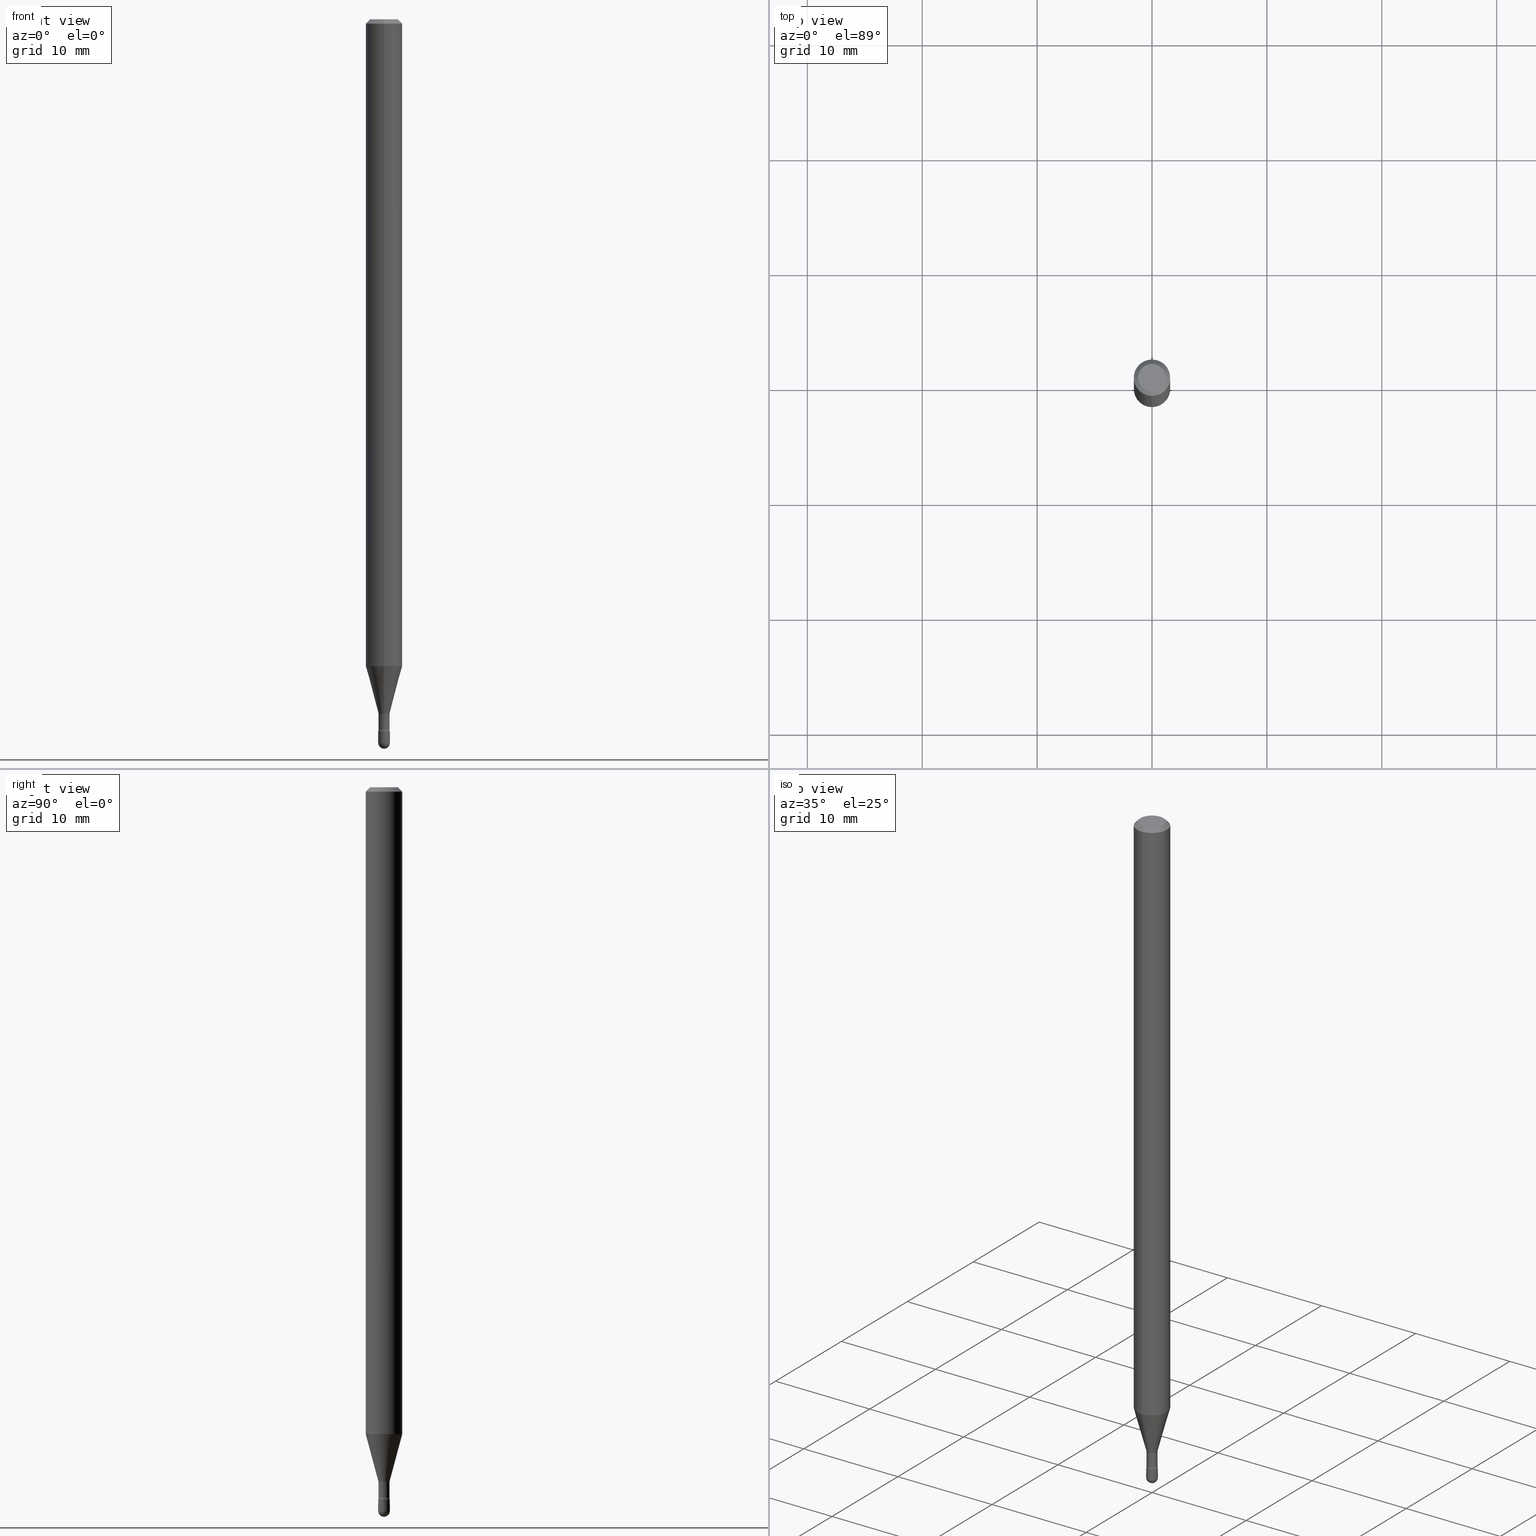
[diagram: canonical four-view strip — front | top / right | iso, engineering-drawing reading convention]
A machine part, canonical four-view strip (front | top / right | iso — engineering-drawing reading convention). The complete STEP part file that produces these views, byte-faithful:
ISO-10303-21;
HEADER;
FILE_DESCRIPTION (( 'STEP AP203' ),
    '1' );
FILE_NAME ('09459.STEP',
    '2024-04-09T23:24:41',
    ( '' ),
    ( '' ),
    'SwSTEP 2.0',
    'SolidWorks 2023',
    '' );
FILE_SCHEMA (( 'CONFIG_CONTROL_DESIGN' ));
ENDSEC;

DATA;
#1 = PERSON_AND_ORGANIZATION ( #21, #259 ) ;
#2 = LINE ( 'NONE', #537, #514 ) ;
#3 = ADVANCED_FACE ( 'NONE', ( #390 ), #66, .F. ) ;
#4 = DATE_TIME_ROLE ( 'creation_date' ) ;
#5 = DIRECTION ( 'NONE',  ( -2.445421573966572073E-29, 3.491548978068420720E-15, 1.000000000000000000 ) ) ;
#6 = CIRCLE ( 'NONE', #224, 0.01499999999999996822 ) ;
#7 = CIRCLE ( 'NONE', #226, 0.01500000000000002720 ) ;
#8 = CC_DESIGN_APPROVAL ( #472, ( #35 ) ) ;
#9 = EDGE_CURVE ( 'NONE', #539, #40, #324, .T. ) ;
#10 = APPROVAL_DATE_TIME ( #447, #472 ) ;
#11 = CARTESIAN_POINT ( 'NONE',  ( 5.966943887091733341E-29, -8.519214466777275048E-15, -2.440000000000000391 ) ) ;
#12 = CYLINDRICAL_SURFACE ( 'NONE', #118, 0.01880000000000003890 ) ;
#13 = EDGE_CURVE ( 'NONE', #121, #373, #145, .T. ) ;
#14 = CC_DESIGN_PERSON_AND_ORGANIZATION_ASSIGNMENT ( #1, #413, ( #35 ) ) ;
#15 = DIRECTION ( 'NONE',  ( -2.445468806185136597E-29, 3.491481338843145583E-15, 1.000000000000000000 ) ) ;
#16 = EDGE_CURVE ( 'NONE', #71, #459, #150, .T. ) ;
#17 = TOROIDAL_SURFACE ( 'NONE', #439, 0.03380000000000004529, 0.01499999999999997169 ) ;
#18 = CIRCLE ( 'NONE', #339, 0.01931111260566397564 ) ;
#19 = AXIS2_PLACEMENT_3D ( 'NONE', #499, #540, #543 ) ;
#20 = ORIENTED_EDGE ( 'NONE', *, *, #161, .T. ) ;
#21 = PERSON ( 'UNSPECIFIED', 'UNSPECIFIED', 'UNSPECIFIED', ('UNSPECIFIED'), ('UNSPECIFIED'), ('UNSPECIFIED') ) ;
#22 = ORIENTED_EDGE ( 'NONE', *, *, #461, .T. ) ;
#23 = DIRECTION ( 'NONE',  ( -2.445468806185136597E-29, 3.491481338843145583E-15, 1.000000000000000000 ) ) ;
#24 = ADVANCED_FACE ( 'NONE', ( #489 ), #476, .T. ) ;
#25 = DIRECTION ( 'NONE',  ( -6.982962677686265922E-15, -1.000000000000000000, 4.370956789862821150E-15 ) ) ;
#26 = AXIS2_PLACEMENT_3D ( 'NONE', #479, #188, #352 ) ;
#27 = ORIENTED_EDGE ( 'NONE', *, *, #516, .T. ) ;
#28 = DIRECTION ( 'NONE',  ( -1.000000000000000000, 6.982962677686265922E-15, -4.883557194083112340E-29 ) ) ;
#29 = ORIENTED_EDGE ( 'NONE', *, *, #461, .F. ) ;
#30 = SPHERICAL_SURFACE ( 'NONE', #158, 0.01999999999999989286 ) ;
#31 = FACE_OUTER_BOUND ( 'NONE', #37, .T. ) ;
#32 = EDGE_CURVE ( 'NONE', #147, #547, #451, .T. ) ;
#33 = CIRCLE ( 'NONE', #244, 0.04749999999999999362 ) ;
#34 = AXIS2_PLACEMENT_3D ( 'NONE', #464, #76, #494 ) ;
#35 = SECURITY_CLASSIFICATION ( '', '', #319 ) ;
#36 = DIRECTION ( 'NONE',  ( 7.105427357601003436E-15, 1.000000000000000000, 0.000000000000000000 ) ) ;
#37 = EDGE_LOOP ( 'NONE', ( #275, #225 ) ) ;
#38 = DIRECTION ( 'NONE',  ( -6.982962677686265922E-15, -1.000000000000000000, 4.370956789862821150E-15 ) ) ;
#39 =( NAMED_UNIT ( * ) SI_UNIT ( $, .STERADIAN. ) SOLID_ANGLE_UNIT ( ) );
#40 = VERTEX_POINT ( 'NONE', #240 ) ;
#41 = DIRECTION ( 'NONE',  ( -6.982962677686265922E-15, -1.000000000000000000, 3.491548978068420325E-15 ) ) ;
#42 = EDGE_CURVE ( 'NONE', #40, #547, #124, .T. ) ;
#43 = VERTEX_POINT ( 'NONE', #184 ) ;
#44 = AXIS2_PLACEMENT_3D ( 'NONE', #218, #478, #222 ) ;
#45 = DIRECTION ( 'NONE',  ( -6.982962677686265133E-15, -1.000000000000000000, 0.000000000000000000 ) ) ;
#46 = AXIS2_PLACEMENT_3D ( 'NONE', #402, #51, #227 ) ;
#47 = DIRECTION ( 'NONE',  ( -2.445421573966572073E-29, 3.491548978068420720E-15, 1.000000000000000000 ) ) ;
#48 = PERSON_AND_ORGANIZATION_ROLE ( 'creator' ) ;
#49 = DIRECTION ( 'NONE',  ( 1.000000000000000000, -6.982962677686235945E-15, 0.000000000000000000 ) ) ;
#50 = EDGE_LOOP ( 'NONE', ( #417, #205, #140, #256 ) ) ;
#51 = DIRECTION ( 'NONE',  ( -2.445421573966572073E-29, 3.491548978068420720E-15, 1.000000000000000000 ) ) ;
#52 = CALENDAR_DATE ( 2024, 9, 4 ) ;
#53 = CARTESIAN_POINT ( 'NONE',  ( 6.064762639339139522E-29, -8.658873720331001644E-15, -2.480000000000000426 ) ) ;
#54 = ORIENTED_EDGE ( 'NONE', *, *, #32, .F. ) ;
#55 = CARTESIAN_POINT ( 'NONE',  ( 0.02000000000000000042, -8.658873720331001644E-15, -2.440000000000000391 ) ) ;
#56 = AXIS2_PLACEMENT_3D ( 'NONE', #555, #178, #336 ) ;
#57 = LINE ( 'NONE', #156, #496 ) ;
#58 = AXIS2_PLACEMENT_3D ( 'NONE', #364, #305, #89 ) ;
#59 = EDGE_CURVE ( 'NONE', #71, #119, #348, .T. ) ;
#60 = LOCAL_TIME ( 19, 24, 41.00000000000000000, #532 ) ;
#61 = PERSON_AND_ORGANIZATION ( #21, #259 ) ;
#62 = DIRECTION ( 'NONE',  ( -7.105427357601000281E-15, -1.000000000000000000, 0.000000000000000000 ) ) ;
#63 = VERTEX_POINT ( 'NONE', #220 ) ;
#64 = CYLINDRICAL_SURFACE ( 'NONE', #19, 0.06250000000000000000 ) ;
#65 = ADVANCED_FACE ( 'NONE', ( #79 ), #30, .T. ) ;
#66 = TOROIDAL_SURFACE ( 'NONE', #44, 0.03380000000000000365, 0.01500000000000002547 ) ;
#67 = VECTOR ( 'NONE', #90, 39.37007874015748143 ) ;
#68 = ORIENTED_EDGE ( 'NONE', *, *, #154, .F. ) ;
#69 = ADVANCED_FACE ( 'NONE', ( #522 ), #85, .F. ) ;
#70 = DIRECTION ( 'NONE',  ( -2.445421573966572073E-29, 3.491548978068420720E-15, 1.000000000000000000 ) ) ;
#71 = VERTEX_POINT ( 'NONE', #173 ) ;
#72 = DIRECTION ( 'NONE',  ( -6.982962677686265922E-15, -1.000000000000000000, 3.483106191921935554E-15 ) ) ;
#73 = CARTESIAN_POINT ( 'NONE',  ( -4.364351673553912750E-16, -0.06250000000000005551, -0.01499999999999986587 ) ) ;
#74 = ORIENTED_EDGE ( 'NONE', *, *, #480, .T. ) ;
#75 = AXIS2_PLACEMENT_3D ( 'NONE', #297, #385, #470 ) ;
#76 = DIRECTION ( 'NONE',  ( -2.445421573966572073E-29, 3.491548978068420720E-15, 1.000000000000000000 ) ) ;
#77 = ORIENTED_EDGE ( 'NONE', *, *, #133, .T. ) ;
#78 = DIRECTION ( 'NONE',  ( 1.000000000000000000, -6.982962677686265922E-15, 4.876176775795935793E-29 ) ) ;
#79 = FACE_OUTER_BOUND ( 'NONE', #381, .T. ) ;
#80 = CARTESIAN_POINT ( 'NONE',  ( 4.440892098501171462E-16, 0.06249999999999995143, -0.01500000000000030129 ) ) ;
#81 = ORIENTED_EDGE ( 'NONE', *, *, #505, .T. ) ;
#82 = LINE ( 'NONE', #123, #504 ) ;
#83 = DIRECTION ( 'NONE',  ( 0.000000000000000000, 0.000000000000000000, 1.000000000000000000 ) ) ;
#84 = PRODUCT ( '09459', '09459', '', ( #519 ) ) ;
#85 = TOROIDAL_SURFACE ( 'NONE', #457, 0.03380000000000004529, 0.01499999999999997169 ) ;
#86 = ORIENTED_EDGE ( 'NONE', *, *, #161, .F. ) ;
#87 = AXIS2_PLACEMENT_3D ( 'NONE', #380, #15, #372 ) ;
#88 = ORIENTED_EDGE ( 'NONE', *, *, #130, .F. ) ;
#89 = DIRECTION ( 'NONE',  ( -6.982962677686265922E-15, -1.000000000000000000, 0.000000000000000000 ) ) ;
#90 = DIRECTION ( 'NONE',  ( -4.851104656540964275E-15, -0.7071067811865500152, -0.7071067811865450192 ) ) ;
#91 = DIRECTION ( 'NONE',  ( 6.982962677686265133E-15, 1.000000000000000000, 0.000000000000000000 ) ) ;
#92 =( LENGTH_UNIT ( ) NAMED_UNIT ( * ) SI_UNIT ( $, .METRE. ) );
#93 = LOCAL_TIME ( 19, 24, 41.00000000000000000, #401 ) ;
#94 = DIRECTION ( 'NONE',  ( -6.982962677686265922E-15, -1.000000000000000000, 0.000000000000000000 ) ) ;
#95 = COORDINATED_UNIVERSAL_TIME_OFFSET ( 5, 0, .BEHIND. ) ;
#96 = ADVANCED_FACE ( 'NONE', ( #300 ), #303, .F. ) ;
#97 = ORIENTED_EDGE ( 'NONE', *, *, #9, .T. ) ;
#98 = DIRECTION ( 'NONE',  ( -2.445421573966572073E-29, 3.491548978068420720E-15, 1.000000000000000000 ) ) ;
#99 = DIRECTION ( 'NONE',  ( -2.445421573966572073E-29, 3.491548978068420720E-15, 1.000000000000000000 ) ) ;
#100 = DATE_AND_TIME ( #535, #350 ) ;
#101 = EDGE_CURVE ( 'NONE', #119, #460, #57, .T. ) ;
#102 = EDGE_LOOP ( 'NONE', ( #557, #469, #398, #246 ) ) ;
#103 = DIRECTION ( 'NONE',  ( -2.445468806185136597E-29, 3.491481338843145583E-15, 1.000000000000000000 ) ) ;
#104 = CARTESIAN_POINT ( 'NONE',  ( 3.668132360949878113E-31, -5.237323467102660391E-17, -0.01500000000000008271 ) ) ;
#105 = EDGE_LOOP ( 'NONE', ( #86, #237, #317, #27 ) ) ;
#106 = DIRECTION ( 'NONE',  ( 2.445421573966571793E-29, -3.491548978068420720E-15, -1.000000000000000000 ) ) ;
#107 = AXIS2_PLACEMENT_3D ( 'NONE', #104, #274, #448 ) ;
#108 = AXIS2_PLACEMENT_3D ( 'NONE', #254, #28, #377 ) ;
#109 = EDGE_CURVE ( 'NONE', #172, #177, #33, .T. ) ;
#110 = VERTEX_POINT ( 'NONE', #562 ) ;
#111 = DIRECTION ( 'NONE',  ( 6.982962677686265133E-15, 1.000000000000000000, 0.000000000000000000 ) ) ;
#112 = ORIENTED_EDGE ( 'NONE', *, *, #363, .T. ) ;
#113 = EDGE_CURVE ( 'NONE', #460, #459, #206, .T. ) ;
#114 = ADVANCED_FACE ( 'NONE', ( #527 ), #530, .T. ) ;
#115 = ORIENTED_EDGE ( 'NONE', *, *, #42, .T. ) ;
#116 = CARTESIAN_POINT ( 'NONE',  ( -0.02000000000000000042, -8.446935546402118183E-15, -2.440000000000000391 ) ) ;
#117 = VECTOR ( 'NONE', #492, 39.37007874015748143 ) ;
#118 = AXIS2_PLACEMENT_3D ( 'NONE', #405, #526, #361 ) ;
#119 = VERTEX_POINT ( 'NONE', #418 ) ;
#120 = CARTESIAN_POINT ( 'NONE',  ( 3.668132360949878113E-31, -5.237323467102660391E-17, -0.01500000000000008271 ) ) ;
#121 = VERTEX_POINT ( 'NONE', #116 ) ;
#122 = LINE ( 'NONE', #291, #181 ) ;
#123 = CARTESIAN_POINT ( 'NONE',  ( 1.335820343228990867E-16, 0.01880000000000003890, 4.124322781035596110E-16 ) ) ;
#124 = CIRCLE ( 'NONE', #235, 0.02000000000000000042 ) ;
#125 = DIRECTION ( 'NONE',  ( 1.000000000000000000, -6.982962677686235945E-15, 0.000000000000000000 ) ) ;
#126 = FACE_OUTER_BOUND ( 'NONE', #493, .T. ) ;
#127 = CONICAL_SURFACE ( 'NONE', #58, 0.01931111260566397564, 0.2617993877991498519 ) ;
#128 = ORIENTED_EDGE ( 'NONE', *, *, #16, .T. ) ;
#129 = FACE_OUTER_BOUND ( 'NONE', #50, .T. ) ;
#130 = EDGE_CURVE ( 'NONE', #459, #460, #556, .T. ) ;
#131 = APPLICATION_CONTEXT ( 'configuration controlled 3d designs of mechanical parts and assemblies' ) ;
#132 = ORIENTED_EDGE ( 'NONE', *, *, #208, .F. ) ;
#133 = EDGE_CURVE ( 'NONE', #63, #564, #429, .T. ) ;
#134 = DIRECTION ( 'NONE',  ( 1.000000000000000000, -7.105427357601001070E-15, 4.926316336883689215E-29 ) ) ;
#135 = ORIENTED_EDGE ( 'NONE', *, *, #387, .T. ) ;
#136 = CIRCLE ( 'NONE', #452, 0.02000000000000000042 ) ;
#137 = CARTESIAN_POINT ( 'NONE',  ( 1.378452907375191717E-16, 0.01879999999999157692, -2.434121224617320944 ) ) ;
#138 = DIRECTION ( 'NONE',  ( -6.982962677686265922E-15, -1.000000000000000000, 3.491548978068420720E-15 ) ) ;
#139 = DESIGN_CONTEXT ( 'detailed design', #389, 'design' ) ;
#140 = ORIENTED_EDGE ( 'NONE', *, *, #219, .T. ) ;
#141 = CARTESIAN_POINT ( 'NONE',  ( -2.360241385057375350E-16, -0.03380000000000831645, -2.381974787463811527 ) ) ;
#142 = CARTESIAN_POINT ( 'NONE',  ( -1.169113584055446105E-44, 1.669184350826100908E-30, 4.780733988912460139E-16 ) ) ;
#143 = EDGE_CURVE ( 'NONE', #232, #63, #82, .T. ) ;
#144 = DATE_TIME_ROLE ( 'classification_date' ) ;
#145 = CIRCLE ( 'NONE', #544, 0.02000000000000000042 ) ;
#146 = CIRCLE ( 'NONE', #46, 0.02000000000000000042 ) ;
#147 = VERTEX_POINT ( 'NONE', #347 ) ;
#148 = CARTESIAN_POINT ( 'NONE',  ( -1.348487785898901629E-16, -0.01931111260567227803, -2.378092501787273605 ) ) ;
#149 = APPROVAL_ROLE ( '' ) ;
#150 = LINE ( 'NONE', #315, #117 ) ;
#151 = DIRECTION ( 'NONE',  ( 6.982962677686265922E-15, 1.000000000000000000, 0.000000000000000000 ) ) ;
#152 = APPROVAL_DATE_TIME ( #239, #277 ) ;
#153 = ORIENTED_EDGE ( 'NONE', *, *, #13, .T. ) ;
#154 = EDGE_CURVE ( 'NONE', #508, #564, #467, .T. ) ;
#155 = DIRECTION ( 'NONE',  ( 1.839019923739597160E-15, 0.2588190451025245142, 0.9659258262890670910 ) ) ;
#156 = CARTESIAN_POINT ( 'NONE',  ( -4.364351673553916201E-16, -0.06250000000000000000, 6.962952100205223829E-16 ) ) ;
#157 = DIRECTION ( 'NONE',  ( 4.937700262164548042E-15, 0.7071067811865451302, -0.7071067811865499042 ) ) ;
#158 = AXIS2_PLACEMENT_3D ( 'NONE', #388, #228, #91 ) ;
#159 = LOCAL_TIME ( 19, 24, 41.00000000000000000, #95 ) ;
#160 = ORIENTED_EDGE ( 'NONE', *, *, #101, .F. ) ;
#161 = EDGE_CURVE ( 'NONE', #209, #63, #374, .T. ) ;
#162 = ORIENTED_EDGE ( 'NONE', *, *, #130, .T. ) ;
#163 = CLOSED_SHELL ( 'NONE', ( #166, #382, #509, #65, #427 ) ) ;
#164 = CIRCLE ( 'NONE', #280, 0.01880000000000000421 ) ;
#165 = CARTESIAN_POINT ( 'NONE',  ( 5.421278024669828095E-29, -7.740447679194095170E-15, -2.216909379709240735 ) ) ;
#166 = ADVANCED_FACE ( 'NONE', ( #423 ), #302, .T. ) ;
#167 = ORIENTED_EDGE ( 'NONE', *, *, #480, .F. ) ;
#168 = CARTESIAN_POINT ( 'NONE',  ( 6.064762639339139522E-29, -8.658873720331001644E-15, -2.480000000000000426 ) ) ;
#169 = CARTESIAN_POINT ( 'NONE',  ( 5.952452556329128680E-29, -8.498853474307259239E-15, -2.434121224617320944 ) ) ;
#170 = ORIENTED_EDGE ( 'NONE', *, *, #320, .F. ) ;
#171 = CARTESIAN_POINT ( 'NONE',  ( 3.840629472727447874E-16, 0.04749999999999999362, -2.485923956665947867E-16 ) ) ;
#172 = VERTEX_POINT ( 'NONE', #171 ) ;
#173 = CARTESIAN_POINT ( 'NONE',  ( 4.440892098501165545E-16, 0.06249999999999224232, -2.216909379709240735 ) ) ;
#174 = DIRECTION ( 'NONE',  ( -2.445468806185136597E-29, 3.491481338843145583E-15, 1.000000000000000000 ) ) ;
#175 = DIRECTION ( 'NONE',  ( -2.445421573966572073E-29, 3.491548978068420720E-15, 1.000000000000000000 ) ) ;
#176 = PERSON_AND_ORGANIZATION ( #21, #259 ) ;
#177 = VERTEX_POINT ( 'NONE', #515 ) ;
#178 = DIRECTION ( 'NONE',  ( -2.445421573966572073E-29, 3.491548978068420720E-15, 1.000000000000000000 ) ) ;
#179 = PRODUCT_DEFINITION_SHAPE ( 'NONE', 'NONE',  #316 ) ;
#180 = EDGE_LOOP ( 'NONE', ( #425, #153 ) ) ;
#181 = VECTOR ( 'NONE', #155, 39.37007874015748854 ) ;
#182 = FACE_OUTER_BOUND ( 'NONE', #262, .T. ) ;
#183 = CARTESIAN_POINT ( 'NONE',  ( 3.668132360949878113E-31, -5.237323467102660391E-17, -0.01500000000000008271 ) ) ;
#184 = CARTESIAN_POINT ( 'NONE',  ( -1.396592535536655829E-16, -0.02000000000000850750, -2.440000000000000391 ) ) ;
#185 = ORIENTED_EDGE ( 'NONE', *, *, #59, .T. ) ;
#186 = FACE_OUTER_BOUND ( 'NONE', #341, .T. ) ;
#187 = APPROVAL_STATUS ( 'not_yet_approved' ) ;
#188 = DIRECTION ( 'NONE',  ( -2.445468806185136597E-29, 3.491481338843145583E-15, 1.000000000000000000 ) ) ;
#189 = COORDINATED_UNIVERSAL_TIME_OFFSET ( 5, 0, .BEHIND. ) ;
#190 = AXIS2_PLACEMENT_3D ( 'NONE', #142, #309, #483 ) ;
#191 = AXIS2_PLACEMENT_3D ( 'NONE', #334, #549, #426 ) ;
#192 = CARTESIAN_POINT ( 'NONE',  ( -1.348487785898901629E-16, -0.01931111260567227803, -2.378092501787273605 ) ) ;
#193 = SHAPE_DEFINITION_REPRESENTATION ( #179, #437 ) ;
#194 = ADVANCED_FACE ( 'NONE', ( #129 ), #438, .T. ) ;
#195 = CARTESIAN_POINT ( 'NONE',  ( 0.02000000000000000042, -8.728703347107863365E-15, -2.480000000000000426 ) ) ;
#196 = APPROVAL ( #485, 'UNSPECIFIED' ) ;
#197 = FACE_OUTER_BOUND ( 'NONE', #379, .T. ) ;
#198 = CIRCLE ( 'NONE', #265, 0.01880000000000007360 ) ;
#199 = AXIS2_PLACEMENT_3D ( 'NONE', #491, #565, #308 ) ;
#200 = ORIENTED_EDGE ( 'NONE', *, *, #219, .F. ) ;
#201 = EDGE_CURVE ( 'NONE', #232, #110, #6, .T. ) ;
#202 = ORIENTED_EDGE ( 'NONE', *, *, #410, .T. ) ;
#203 = ADVANCED_FACE ( 'NONE', ( #186 ), #233, .T. ) ;
#204 = LINE ( 'NONE', #285, #310 ) ;
#205 = ORIENTED_EDGE ( 'NONE', *, *, #213, .T. ) ;
#206 = CIRCLE ( 'NONE', #414, 0.06250000000000000000 ) ;
#207 = SPHERICAL_SURFACE ( 'NONE', #422, 0.01999999999999989286 ) ;
#208 = EDGE_CURVE ( 'NONE', #232, #508, #198, .T. ) ;
#209 = VERTEX_POINT ( 'NONE', #223 ) ;
#210 = DIRECTION ( 'NONE',  ( -2.445468806185136597E-29, 3.491481338843145583E-15, 1.000000000000000000 ) ) ;
#211 = CYLINDRICAL_SURFACE ( 'NONE', #87, 0.02000000000000000042 ) ;
#212 = CARTESIAN_POINT ( 'NONE',  ( 3.316907271900976096E-16, 0.04749999999999999362, 3.181621338320067871E-17 ) ) ;
#213 = EDGE_CURVE ( 'NONE', #209, #333, #18, .T. ) ;
#214 = CARTESIAN_POINT ( 'NONE',  ( 0.000000000000000000, 0.000000000000000000, 0.000000000000000000 ) ) ;
#215 = ADVANCED_FACE ( 'NONE', ( #182 ), #17, .F. ) ;
#216 = AXIS2_PLACEMENT_3D ( 'NONE', #169, #70, #337 ) ;
#217 = CC_DESIGN_PERSON_AND_ORGANIZATION_ASSIGNMENT ( #231, #404, ( #316 ) ) ;
#218 = CARTESIAN_POINT ( 'NONE',  ( 5.825045039862221123E-29, -8.316620520024764455E-15, -2.381974787463811527 ) ) ;
#219 = EDGE_CURVE ( 'NONE', #333, #119, #560, .T. ) ;
#220 = CARTESIAN_POINT ( 'NONE',  ( 1.335820343229584731E-16, 0.01879999999999168447, -2.381974787463811527 ) ) ;
#221 = DIRECTION ( 'NONE',  ( 1.000000000000000000, 0.000000000000000000, 0.000000000000000000 ) ) ;
#222 = DIRECTION ( 'NONE',  ( -6.982962677686265922E-15, -1.000000000000000000, 3.491548978068420720E-15 ) ) ;
#223 = CARTESIAN_POINT ( 'NONE',  ( 2.906514588320867785E-16, 0.01931111260565567325, -2.378092501787273605 ) ) ;
#224 = AXIS2_PLACEMENT_3D ( 'NONE', #342, #257, #36 ) ;
#225 = ORIENTED_EDGE ( 'NONE', *, *, #531, .T. ) ;
#226 = AXIS2_PLACEMENT_3D ( 'NONE', #141, #268, #45 ) ;
#227 = DIRECTION ( 'NONE',  ( -6.982962677686265922E-15, -1.000000000000000000, 0.000000000000000000 ) ) ;
#228 = DIRECTION ( 'NONE',  ( -1.000000000000000000, 6.982962677686265133E-15, -4.883557194083112340E-29 ) ) ;
#229 = APPROVAL_STATUS ( 'not_yet_approved' ) ;
#230 = LINE ( 'NONE', #533, #67 ) ;
#231 = PERSON_AND_ORGANIZATION ( #21, #259 ) ;
#232 = VERTEX_POINT ( 'NONE', #137 ) ;
#233 = CYLINDRICAL_SURFACE ( 'NONE', #513, 0.01880000000000003890 ) ;
#234 = DATE_AND_TIME ( #269, #93 ) ;
#235 = AXIS2_PLACEMENT_3D ( 'NONE', #411, #248, #125 ) ;
#236 = CIRCLE ( 'NONE', #375, 0.02000000000000000042 ) ;
#237 = ORIENTED_EDGE ( 'NONE', *, *, #542, .F. ) ;
#238 = FACE_OUTER_BOUND ( 'NONE', #326, .T. ) ;
#239 = DATE_AND_TIME ( #314, #386 ) ;
#240 = CARTESIAN_POINT ( 'NONE',  ( -0.02000000000000000042, -8.446935546402118183E-15, -2.480000000000000426 ) ) ;
#241 = EDGE_LOOP ( 'NONE', ( #456, #428, #81, #162 ) ) ;
#242 = CARTESIAN_POINT ( 'NONE',  ( 5.824932533908444058E-29, -8.316781634954014856E-15, -2.381974787463811527 ) ) ;
#243 = EDGE_CURVE ( 'NONE', #290, #539, #550, .T. ) ;
#244 = AXIS2_PLACEMENT_3D ( 'NONE', #495, #395, #403 ) ;
#245 = AXIS2_PLACEMENT_3D ( 'NONE', #212, #106, #419 ) ;
#246 = ORIENTED_EDGE ( 'NONE', *, *, #133, .F. ) ;
#247 = ADVANCED_FACE ( 'NONE', ( #481 ), #12, .T. ) ;
#248 = DIRECTION ( 'NONE',  ( -2.445468806185136597E-29, 3.491481338843145583E-15, 1.000000000000000000 ) ) ;
#249 = DIRECTION ( 'NONE',  ( -2.445421573966572073E-29, 3.491548978068420720E-15, 1.000000000000000000 ) ) ;
#250 = ORIENTED_EDGE ( 'NONE', *, *, #201, .F. ) ;
#251 = PLANE ( 'NONE',  #191 ) ;
#252 = ORIENTED_EDGE ( 'NONE', *, *, #505, .F. ) ;
#253 = DIRECTION ( 'NONE',  ( 6.982962677686265922E-15, 1.000000000000000000, -3.483106191921935554E-15 ) ) ;
#254 = CARTESIAN_POINT ( 'NONE',  ( -2.360241385057365982E-16, -0.03380000000000854543, -2.434121224617320944 ) ) ;
#255 = EDGE_LOOP ( 'NONE', ( #135, #128, #432, #160 ) ) ;
#256 = ORIENTED_EDGE ( 'NONE', *, *, #59, .F. ) ;
#257 = DIRECTION ( 'NONE',  ( 1.000000000000000000, -7.105427357601001070E-15, 4.926316336883689215E-29 ) ) ;
#258 = AXIS2_PLACEMENT_3D ( 'NONE', #214, #210, #78 ) ;
#259 = ORGANIZATION ( 'UNSPECIFIED', 'UNSPECIFIED', '' ) ;
#260 = PERSON_AND_ORGANIZATION ( #21, #259 ) ;
#261 = EDGE_CURVE ( 'NONE', #177, #460, #230, .T. ) ;
#262 = EDGE_LOOP ( 'NONE', ( #250, #546, #74, #312 ) ) ;
#263 = FACE_OUTER_BOUND ( 'NONE', #465, .T. ) ;
#264 = DIRECTION ( 'NONE',  ( -2.445421573966572073E-29, 3.491548978068420720E-15, 1.000000000000000000 ) ) ;
#265 = AXIS2_PLACEMENT_3D ( 'NONE', #354, #47, #307 ) ;
#266 = CIRCLE ( 'NONE', #359, 0.06250000000000000000 ) ;
#267 = APPROVAL_PERSON_ORGANIZATION ( #273, #472, #149 ) ;
#268 = DIRECTION ( 'NONE',  ( -1.000000000000000000, 6.982962677686265922E-15, -4.883557194083112340E-29 ) ) ;
#269 = CALENDAR_DATE ( 2024, 9, 4 ) ;
#270 = ORIENTED_EDGE ( 'NONE', *, *, #101, .T. ) ;
#271 = EDGE_CURVE ( 'NONE', #110, #43, #136, .T. ) ;
#272 = CARTESIAN_POINT ( 'NONE',  ( 6.064762639339139522E-29, -8.658873720331001644E-15, -2.480000000000000426 ) ) ;
#273 = PERSON_AND_ORGANIZATION ( #21, #259 ) ;
#274 = DIRECTION ( 'NONE',  ( 2.445421573966572073E-29, -3.491548978068420720E-15, -1.000000000000000000 ) ) ;
#275 = ORIENTED_EDGE ( 'NONE', *, *, #109, .T. ) ;
#276 = FACE_OUTER_BOUND ( 'NONE', #474, .T. ) ;
#277 = APPROVAL ( #229, 'UNSPECIFIED' ) ;
#278 = DIRECTION ( 'NONE',  ( -1.000000000000000000, 7.105427357601001070E-15, -4.926315508542082329E-29 ) ) ;
#279 = AXIS2_PLACEMENT_3D ( 'NONE', #524, #134, #473 ) ;
#280 = AXIS2_PLACEMENT_3D ( 'NONE', #242, #554, #325 ) ;
#281 = ORIENTED_EDGE ( 'NONE', *, *, #271, .T. ) ;
#282 = CARTESIAN_POINT ( 'NONE',  ( -1.421085471519589527E-16, -0.02000000000000860464, -2.480000000000000426 ) ) ;
#283 = EDGE_CURVE ( 'NONE', #333, #564, #7, .T. ) ;
#284 = ORIENTED_EDGE ( 'NONE', *, *, #261, .T. ) ;
#285 = CARTESIAN_POINT ( 'NONE',  ( 4.364351673553919652E-16, 0.06249999999999995143, -0.01500000000000030129 ) ) ;
#286 = ORIENTED_EDGE ( 'NONE', *, *, #9, .F. ) ;
#287 = CIRCLE ( 'NONE', #34, 0.01931111260566397564 ) ;
#288 = EDGE_LOOP ( 'NONE', ( #132, #421, #281, #167 ) ) ;
#289 = CARTESIAN_POINT ( 'NONE',  ( -0.02000000000000000042, 1.421085471520200401E-16, -9.837870180509812545E-31 ) ) ;
#290 = VERTEX_POINT ( 'NONE', #195 ) ;
#291 = CARTESIAN_POINT ( 'NONE',  ( 1.372137078140565094E-16, 0.01931111260565567325, -2.378092501787273605 ) ) ;
#292 = ORIENTED_EDGE ( 'NONE', *, *, #516, .F. ) ;
#293 = AXIS2_PLACEMENT_3D ( 'NONE', #424, #23, #511 ) ;
#294 = PRODUCT_RELATED_PRODUCT_CATEGORY ( 'detail', '', ( #84 ) ) ;
#295 = DIRECTION ( 'NONE',  ( -6.982962677686266711E-15, -1.000000000000000000, 3.491548978068420720E-15 ) ) ;
#296 = ORIENTED_EDGE ( 'NONE', *, *, #320, .T. ) ;
#297 = CARTESIAN_POINT ( 'NONE',  ( 5.815438708758737850E-29, -8.303226444367528086E-15, -2.378092501787273605 ) ) ;
#298 =( CONVERSION_BASED_UNIT ( 'INCH', #440 ) LENGTH_UNIT ( ) NAMED_UNIT ( #503 ) );
#299 = CARTESIAN_POINT ( 'NONE',  ( -1.312796983405020727E-16, -0.01880000000000003890, 5.437145196789325155E-16 ) ) ;
#300 = FACE_OUTER_BOUND ( 'NONE', #528, .T. ) ;
#301 = EDGE_CURVE ( 'NONE', #43, #110, #146, .T. ) ;
#302 = CYLINDRICAL_SURFACE ( 'NONE', #258, 0.02000000000000000042 ) ;
#303 = TOROIDAL_SURFACE ( 'NONE', #534, 0.03380000000000000365, 0.01500000000000002547 ) ;
#304 = ORIENTED_EDGE ( 'NONE', *, *, #531, .F. ) ;
#305 = DIRECTION ( 'NONE',  ( -2.445421573966572073E-29, 3.491548978068420720E-15, 1.000000000000000000 ) ) ;
#306 = ADVANCED_FACE ( 'NONE', ( #276 ), #399, .F. ) ;
#307 = DIRECTION ( 'NONE',  ( -6.982962677686265922E-15, -1.000000000000000000, 0.000000000000000000 ) ) ;
#308 = DIRECTION ( 'NONE',  ( -6.982962677686265922E-15, -1.000000000000000000, 3.491548978068420720E-15 ) ) ;
#309 = DIRECTION ( 'NONE',  ( -2.445421573966572073E-29, 3.491548978068420720E-15, 1.000000000000000000 ) ) ;
#310 = VECTOR ( 'NONE', #157, 39.37007874015748143 ) ;
#311 = MANIFOLD_SOLID_BREP ( 'Body-Move/Copy2[1]', #163 ) ;
#312 = ORIENTED_EDGE ( 'NONE', *, *, #301, .T. ) ;
#313 = CARTESIAN_POINT ( 'NONE',  ( 5.966828640478436565E-29, -8.519379506486946099E-15, -2.440000000000000391 ) ) ;
#314 = CALENDAR_DATE ( 2024, 9, 4 ) ;
#315 = CARTESIAN_POINT ( 'NONE',  ( 4.440892098500625669E-16, 0.06250000000000000000, 2.598515877619697929E-16 ) ) ;
#316 = PRODUCT_DEFINITION ( 'UNKNOWN', '', #558, #139 ) ;
#317 = ORIENTED_EDGE ( 'NONE', *, *, #283, .T. ) ;
#318 = CARTESIAN_POINT ( 'NONE',  ( 5.966943887091733341E-29, -8.519214466777275048E-15, -2.440000000000000391 ) ) ;
#319 = SECURITY_CLASSIFICATION_LEVEL ( 'unclassified' ) ;
#320 = EDGE_CURVE ( 'NONE', #290, #373, #2, .T. ) ;
#321 = ORIENTED_EDGE ( 'NONE', *, *, #16, .F. ) ;
#322 = CARTESIAN_POINT ( 'NONE',  ( 1.396592535537856130E-16, 0.01999999999999128517, -2.480000000000000426 ) ) ;
#323 = DIRECTION ( 'NONE',  ( -2.445421573966572073E-29, 3.491548978068420720E-15, 1.000000000000000000 ) ) ;
#324 = CIRCLE ( 'NONE', #384, 0.02000000000000000042 ) ;
#325 = DIRECTION ( 'NONE',  ( -6.982962677686265922E-15, -1.000000000000000000, 0.000000000000000000 ) ) ;
#326 = EDGE_LOOP ( 'NONE', ( #551, #346, #444, #200 ) ) ;
#327 = ORIENTED_EDGE ( 'NONE', *, *, #363, .F. ) ;
#328 = CC_DESIGN_PERSON_AND_ORGANIZATION_ASSIGNMENT ( #454, #407, ( #558 ) ) ;
#329 = ORIENTED_EDGE ( 'NONE', *, *, #143, .T. ) ;
#330 = APPROVAL_PERSON_ORGANIZATION ( #176, #196, #488 ) ;
#331 = DIRECTION ( 'NONE',  ( -2.445421573966572073E-29, 3.491548978068420720E-15, 1.000000000000000000 ) ) ;
#332 = DIRECTION ( 'NONE',  ( -2.445421573966572073E-29, 3.491548978068420720E-15, 1.000000000000000000 ) ) ;
#333 = VERTEX_POINT ( 'NONE', #192 ) ;
#334 = CARTESIAN_POINT ( 'NONE',  ( 5.966943887091733341E-29, -8.519214466777275048E-15, -2.440000000000000391 ) ) ;
#335 = ORIENTED_EDGE ( 'NONE', *, *, #441, .T. ) ;
#336 = DIRECTION ( 'NONE',  ( -6.982962677686265922E-15, -1.000000000000000000, 0.000000000000000000 ) ) ;
#337 = DIRECTION ( 'NONE',  ( -6.982962677686265922E-15, -1.000000000000000000, 0.000000000000000000 ) ) ;
#338 = VECTOR ( 'NONE', #518, 39.37007874015748143 ) ;
#339 = AXIS2_PLACEMENT_3D ( 'NONE', #442, #264, #394 ) ;
#340 = AXIS2_PLACEMENT_3D ( 'NONE', #510, #249, #295 ) ;
#341 = EDGE_LOOP ( 'NONE', ( #202, #329, #292, #68 ) ) ;
#342 = CARTESIAN_POINT ( 'NONE',  ( 2.401634446869736943E-16, 0.03379999999999155208, -2.434121224617320944 ) ) ;
#343 = DIRECTION ( 'NONE',  ( -2.445421573966572073E-29, 3.491548978068420720E-15, 1.000000000000000000 ) ) ;
#344 = APPLICATION_PROTOCOL_DEFINITION ( 'international standard', 'config_control_design', 1994, #131 ) ;
#345 = DIRECTION ( 'NONE',  ( -2.445421573966572073E-29, 3.491548978068420720E-15, 1.000000000000000000 ) ) ;
#346 = ORIENTED_EDGE ( 'NONE', *, *, #536, .T. ) ;
#347 = CARTESIAN_POINT ( 'NONE',  ( 6.114527181752021441E-29, -8.727478700308718159E-15, -2.500000000000000000 ) ) ;
#348 = CIRCLE ( 'NONE', #548, 0.06250000000000000000 ) ;
#349 = VECTOR ( 'NONE', #367, 39.37007874015748143 ) ;
#350 = LOCAL_TIME ( 19, 24, 41.00000000000000000, #358 ) ;
#351 = ORIENTED_EDGE ( 'NONE', *, *, #366, .F. ) ;
#352 = DIRECTION ( 'NONE',  ( 1.000000000000000000, -6.982962677686235945E-15, 0.000000000000000000 ) ) ;
#353 = DIRECTION ( 'NONE',  ( -6.982962677686265922E-15, -1.000000000000000000, 3.483106191921935554E-15 ) ) ;
#354 = CARTESIAN_POINT ( 'NONE',  ( 5.952452556329128680E-29, -8.498853474307259239E-15, -2.434121224617320944 ) ) ;
#355 = DIRECTION ( 'NONE',  ( -2.445468806185136597E-29, 3.491481338843145583E-15, 1.000000000000000000 ) ) ;
#356 = ORIENTED_EDGE ( 'NONE', *, *, #113, .T. ) ;
#357 = DIRECTION ( 'NONE',  ( -1.807323732225327378E-15, -0.2588190451025177974, 0.9659258262890690894 ) ) ;
#358 = COORDINATED_UNIVERSAL_TIME_OFFSET ( 5, 0, .BEHIND. ) ;
#359 = AXIS2_PLACEMENT_3D ( 'NONE', #165, #332, #25 ) ;
#360 = DIRECTION ( 'NONE',  ( 1.000000000000000000, -6.982962677686284065E-15, 0.000000000000000000 ) ) ;
#361 = DIRECTION ( 'NONE',  ( -6.982962677686265922E-15, -1.000000000000000000, 3.491548978068420325E-15 ) ) ;
#362 = DATE_AND_TIME ( #52, #159 ) ;
#363 = EDGE_CURVE ( 'NONE', #147, #539, #408, .T. ) ;
#364 = CARTESIAN_POINT ( 'NONE',  ( 5.815438708758737850E-29, -8.303226444367528086E-15, -2.378092501787273605 ) ) ;
#365 = PERSON_AND_ORGANIZATION ( #21, #259 ) ;
#366 = EDGE_CURVE ( 'NONE', #373, #121, #236, .T. ) ;
#367 = DIRECTION ( 'NONE',  ( -2.445468806185136877E-29, 3.491481338843145188E-15, 1.000000000000000000 ) ) ;
#368 = AXIS2_PLACEMENT_3D ( 'NONE', #53, #278, #62 ) ;
#369 = CIRCLE ( 'NONE', #216, 0.01880000000000007360 ) ;
#370 = CARTESIAN_POINT ( 'NONE',  ( 3.668132360949878113E-31, -5.237323467102660391E-17, -0.01500000000000008271 ) ) ;
#371 = ORIENTED_EDGE ( 'NONE', *, *, #441, .F. ) ;
#372 = DIRECTION ( 'NONE',  ( 1.000000000000000000, -6.982962677686265922E-15, 4.876176775795935793E-29 ) ) ;
#373 = VERTEX_POINT ( 'NONE', #55 ) ;
#374 = CIRCLE ( 'NONE', #279, 0.01500000000000002720 ) ;
#375 = AXIS2_PLACEMENT_3D ( 'NONE', #318, #103, #449 ) ;
#376 = CC_DESIGN_SECURITY_CLASSIFICATION ( #35, ( #558 ) ) ;
#377 = DIRECTION ( 'NONE',  ( -6.982962677686262766E-15, -1.000000000000000000, 0.000000000000000000 ) ) ;
#378 = ADVANCED_FACE ( 'NONE', ( #238 ), #127, .T. ) ;
#379 = EDGE_LOOP ( 'NONE', ( #304, #284, #356, #252 ) ) ;
#380 = CARTESIAN_POINT ( 'NONE',  ( 0.000000000000000000, 0.000000000000000000, 0.000000000000000000 ) ) ;
#381 = EDGE_LOOP ( 'NONE', ( #54, #112, #463, #371 ) ) ;
#382 = ADVANCED_FACE ( 'NONE', ( #263 ), #207, .T. ) ;
#383 = EDGE_LOOP ( 'NONE', ( #29, #115, #335, #296, #553 ) ) ;
#384 = AXIS2_PLACEMENT_3D ( 'NONE', #393, #174, #49 ) ;
#385 = DIRECTION ( 'NONE',  ( -2.445421573966572073E-29, 3.491548978068420720E-15, 1.000000000000000000 ) ) ;
#386 = LOCAL_TIME ( 19, 24, 41.00000000000000000, #189 ) ;
#387 = EDGE_CURVE ( 'NONE', #119, #71, #266, .T. ) ;
#388 = CARTESIAN_POINT ( 'NONE',  ( 6.064762639339139522E-29, -8.658873720331001644E-15, -2.480000000000000426 ) ) ;
#389 = APPLICATION_CONTEXT ( 'configuration controlled 3d designs of mechanical parts and assemblies' ) ;
#390 = FACE_OUTER_BOUND ( 'NONE', #105, .T. ) ;
#391 = APPLICATION_PROTOCOL_DEFINITION ( 'international standard', 'config_control_design', 1994, #389 ) ;
#392 = CARTESIAN_POINT ( 'NONE',  ( 5.421278024669828095E-29, -7.740447679194095170E-15, -2.216909379709240735 ) ) ;
#393 = CARTESIAN_POINT ( 'NONE',  ( 6.064762639339139522E-29, -8.658873720331001644E-15, -2.480000000000000426 ) ) ;
#394 = DIRECTION ( 'NONE',  ( -6.982962677686265922E-15, -1.000000000000000000, 0.000000000000000000 ) ) ;
#395 = DIRECTION ( 'NONE',  ( -2.445421573966572073E-29, 3.491548978068420720E-15, 1.000000000000000000 ) ) ;
#396 = CLOSED_SHELL ( 'NONE', ( #96, #203, #69, #434, #114, #378, #194, #500, #24, #523, #306, #215, #247, #3 ) ) ;
#397 = AXIS2_PLACEMENT_3D ( 'NONE', #471, #83, #221 ) ;
#398 = ORIENTED_EDGE ( 'NONE', *, *, #154, .T. ) ;
#399 = PLANE ( 'NONE',  #199 ) ;
#400 = CARTESIAN_POINT ( 'NONE',  ( 5.825045039862221123E-29, -8.316620520024764455E-15, -2.381974787463811527 ) ) ;
#401 = COORDINATED_UNIVERSAL_TIME_OFFSET ( 5, 0, .BEHIND. ) ;
#402 = CARTESIAN_POINT ( 'NONE',  ( 5.966828640478436565E-29, -8.519379506486946099E-15, -2.440000000000000391 ) ) ;
#403 = DIRECTION ( 'NONE',  ( -6.982962677686266711E-15, -1.000000000000000000, 3.491548978068420720E-15 ) ) ;
#404 = PERSON_AND_ORGANIZATION_ROLE ( 'creator' ) ;
#405 = CARTESIAN_POINT ( 'NONE',  ( -1.169113584055446105E-44, 1.669184350826100908E-30, 4.780733988912460139E-16 ) ) ;
#406 = AXIS2_PLACEMENT_3D ( 'NONE', #370, #331, #72 ) ;
#407 = PERSON_AND_ORGANIZATION_ROLE ( 'design_supplier' ) ;
#408 = CIRCLE ( 'NONE', #458, 0.01999999999999989286 ) ;
#409 = CARTESIAN_POINT ( 'NONE',  ( 5.952567525274821981E-29, -8.498688832233400382E-15, -2.434121224617320944 ) ) ;
#410 = EDGE_CURVE ( 'NONE', #508, #232, #369, .T. ) ;
#411 = CARTESIAN_POINT ( 'NONE',  ( 6.064762639339139522E-29, -8.658873720331001644E-15, -2.480000000000000426 ) ) ;
#412 = CARTESIAN_POINT ( 'NONE',  ( -1.312796983404428095E-16, -0.01880000000000857374, -2.434121224617320944 ) ) ;
#413 = PERSON_AND_ORGANIZATION_ROLE ( 'classification_officer' ) ;
#414 = AXIS2_PLACEMENT_3D ( 'NONE', #183, #566, #353 ) ;
#415 = VECTOR ( 'NONE', #357, 39.37007874015748143 ) ;
#416 = CC_DESIGN_APPROVAL ( #196, ( #316 ) ) ;
#417 = ORIENTED_EDGE ( 'NONE', *, *, #536, .F. ) ;
#418 = CARTESIAN_POINT ( 'NONE',  ( -4.364351673553375831E-16, -0.06250000000000775768, -2.216909379709240291 ) ) ;
#419 = DIRECTION ( 'NONE',  ( 6.982962677686265922E-15, 1.000000000000000000, -3.491548978068420720E-15 ) ) ;
#420 = PLANE ( 'NONE',  #245 ) ;
#421 = ORIENTED_EDGE ( 'NONE', *, *, #201, .T. ) ;
#422 = AXIS2_PLACEMENT_3D ( 'NONE', #168, #455, #111 ) ;
#423 = FACE_OUTER_BOUND ( 'NONE', #501, .T. ) ;
#424 = CARTESIAN_POINT ( 'NONE',  ( 6.064762639339139522E-29, -8.658873720331001644E-15, -2.480000000000000426 ) ) ;
#425 = ORIENTED_EDGE ( 'NONE', *, *, #366, .T. ) ;
#426 = DIRECTION ( 'NONE',  ( 1.000000000000000000, -6.982962677686265922E-15, 4.876176775795935793E-29 ) ) ;
#427 = ADVANCED_FACE ( 'NONE', ( #507 ), #211, .T. ) ;
#428 = ORIENTED_EDGE ( 'NONE', *, *, #109, .F. ) ;
#429 = CIRCLE ( 'NONE', #56, 0.01880000000000000421 ) ;
#430 = CIRCLE ( 'NONE', #293, 0.02000000000000000042 ) ;
#431 = PERSON_AND_ORGANIZATION_ROLE ( 'design_owner' ) ;
#432 = ORIENTED_EDGE ( 'NONE', *, *, #113, .F. ) ;
#433 = ORIENTED_EDGE ( 'NONE', *, *, #32, .T. ) ;
#434 = ADVANCED_FACE ( 'NONE', ( #197 ), #545, .T. ) ;
#435 = CC_DESIGN_PERSON_AND_ORGANIZATION_ASSIGNMENT ( #365, #48, ( #558 ) ) ;
#436 = ORIENTED_EDGE ( 'NONE', *, *, #283, .F. ) ;
#437 = ADVANCED_BREP_SHAPE_REPRESENTATION ( '09459', ( #311, #506, #397 ), #561 ) ;
#438 = CONICAL_SURFACE ( 'NONE', #75, 0.01931111260566397564, 0.2617993877991498519 ) ;
#439 = AXIS2_PLACEMENT_3D ( 'NONE', #409, #98, #138 ) ;
#440 = LENGTH_MEASURE_WITH_UNIT ( LENGTH_MEASURE( 0.02539999999999999897 ), #92 );
#441 = EDGE_CURVE ( 'NONE', #547, #290, #430, .T. ) ;
#442 = CARTESIAN_POINT ( 'NONE',  ( 5.815438708758737850E-29, -8.303226444367528086E-15, -2.378092501787273605 ) ) ;
#443 = APPROVAL_ROLE ( '' ) ;
#444 = ORIENTED_EDGE ( 'NONE', *, *, #387, .F. ) ;
#445 = DIRECTION ( 'NONE',  ( 1.000000000000000000, -6.982962677686265922E-15, 4.883557194083112340E-29 ) ) ;
#446 = DIRECTION ( 'NONE',  ( -6.982962677686265922E-15, -1.000000000000000000, 3.491548978068420720E-15 ) ) ;
#447 = DATE_AND_TIME ( #541, #60 ) ;
#448 = DIRECTION ( 'NONE',  ( 6.982962677686265922E-15, 1.000000000000000000, -3.483106191921935554E-15 ) ) ;
#449 = DIRECTION ( 'NONE',  ( 1.000000000000000000, -6.982962677686284065E-15, 0.000000000000000000 ) ) ;
#450 = CC_DESIGN_DATE_AND_TIME_ASSIGNMENT ( #100, #144, ( #35 ) ) ;
#451 = CIRCLE ( 'NONE', #368, 0.01999999999999989286 ) ;
#452 = AXIS2_PLACEMENT_3D ( 'NONE', #313, #529, #94 ) ;
#453 = CARTESIAN_POINT ( 'NONE',  ( -1.312796983404435737E-16, -0.01880000000000832047, -2.381974787463811527 ) ) ;
#454 = PERSON_AND_ORGANIZATION ( #21, #259 ) ;
#455 = DIRECTION ( 'NONE',  ( -1.000000000000000000, 6.982962677686265133E-15, -4.883557194083112340E-29 ) ) ;
#456 = ORIENTED_EDGE ( 'NONE', *, *, #261, .F. ) ;
#457 = AXIS2_PLACEMENT_3D ( 'NONE', #559, #343, #521 ) ;
#458 = AXIS2_PLACEMENT_3D ( 'NONE', #272, #445, #151 ) ;
#459 = VERTEX_POINT ( 'NONE', #80 ) ;
#460 = VERTEX_POINT ( 'NONE', #73 ) ;
#461 = EDGE_CURVE ( 'NONE', #40, #121, #552, .T. ) ;
#462 = FACE_OUTER_BOUND ( 'NONE', #180, .T. ) ;
#463 = ORIENTED_EDGE ( 'NONE', *, *, #243, .F. ) ;
#464 = CARTESIAN_POINT ( 'NONE',  ( 5.815438708758737850E-29, -8.303226444367528086E-15, -2.378092501787273605 ) ) ;
#465 = EDGE_LOOP ( 'NONE', ( #327, #433, #517, #286 ) ) ;
#466 = AXIS2_PLACEMENT_3D ( 'NONE', #120, #468, #253 ) ;
#467 = LINE ( 'NONE', #299, #338 ) ;
#468 = DIRECTION ( 'NONE',  ( 2.445421573966572073E-29, -3.491548978068420720E-15, -1.000000000000000000 ) ) ;
#469 = ORIENTED_EDGE ( 'NONE', *, *, #208, .T. ) ;
#470 = DIRECTION ( 'NONE',  ( -6.982962677686265922E-15, -1.000000000000000000, 0.000000000000000000 ) ) ;
#471 = CARTESIAN_POINT ( 'NONE',  ( 0.000000000000000000, 0.000000000000000000, 0.000000000000000000 ) ) ;
#472 = APPROVAL ( #187, 'UNSPECIFIED' ) ;
#473 = DIRECTION ( 'NONE',  ( 7.105427357600997914E-15, 1.000000000000000000, 0.000000000000000000 ) ) ;
#474 = EDGE_LOOP ( 'NONE', ( #512, #498 ) ) ;
#475 = CC_DESIGN_DATE_AND_TIME_ASSIGNMENT ( #234, #4, ( #316 ) ) ;
#476 = CONICAL_SURFACE ( 'NONE', #107, 0.06250000000000000000, 0.7853981633974483900 ) ;
#477 =( NAMED_UNIT ( * ) PLANE_ANGLE_UNIT ( ) SI_UNIT ( $, .RADIAN. ) );
#478 = DIRECTION ( 'NONE',  ( -2.445421573966572073E-29, 3.491548978068420720E-15, 1.000000000000000000 ) ) ;
#479 = CARTESIAN_POINT ( 'NONE',  ( 6.064762639339139522E-29, -8.658873720331001644E-15, -2.480000000000000426 ) ) ;
#480 = EDGE_CURVE ( 'NONE', #508, #43, #525, .T. ) ;
#481 = FACE_OUTER_BOUND ( 'NONE', #102, .T. ) ;
#482 = CARTESIAN_POINT ( 'NONE',  ( -1.169113584055446105E-44, 1.669184350826100908E-30, 4.780733988912460139E-16 ) ) ;
#483 = DIRECTION ( 'NONE',  ( -6.982962677686265922E-15, -1.000000000000000000, 3.491548978068421114E-15 ) ) ;
#484 = APPROVAL_PERSON_ORGANIZATION ( #61, #277, #443 ) ;
#485 = APPROVAL_STATUS ( 'not_yet_approved' ) ;
#486 = CC_DESIGN_APPROVAL ( #277, ( #558 ) ) ;
#487 = DIRECTION ( 'NONE',  ( -2.445468806185136877E-29, 3.491481338843145188E-15, 1.000000000000000000 ) ) ;
#488 = APPROVAL_ROLE ( '' ) ;
#489 = FACE_OUTER_BOUND ( 'NONE', #241, .T. ) ;
#490 = ORIENTED_EDGE ( 'NONE', *, *, #243, .T. ) ;
#491 = CARTESIAN_POINT ( 'NONE',  ( 1.396592535537849721E-16, 0.01999999999999147945, -2.440000000000000391 ) ) ;
#492 = DIRECTION ( 'NONE',  ( -2.445421573966572073E-29, 3.491548978068420720E-15, 1.000000000000000000 ) ) ;
#493 = EDGE_LOOP ( 'NONE', ( #321, #185, #270, #88 ) ) ;
#494 = DIRECTION ( 'NONE',  ( -6.982962677686265922E-15, -1.000000000000000000, 0.000000000000000000 ) ) ;
#495 = CARTESIAN_POINT ( 'NONE',  ( 2.023209401372098537E-45, -2.889364339127003433E-31, -8.274381920834485527E-17 ) ) ;
#496 = VECTOR ( 'NONE', #323, 39.37007874015748143 ) ;
#497 = CIRCLE ( 'NONE', #340, 0.04749999999999999362 ) ;
#498 = ORIENTED_EDGE ( 'NONE', *, *, #271, .F. ) ;
#499 = CARTESIAN_POINT ( 'NONE',  ( -1.169113584055446105E-44, 1.669184350826100908E-30, 4.780733988912460139E-16 ) ) ;
#500 = ADVANCED_FACE ( 'NONE', ( #126 ), #64, .T. ) ;
#501 = EDGE_LOOP ( 'NONE', ( #97, #22, #351, #170, #490 ) ) ;
#502 = ORIENTED_EDGE ( 'NONE', *, *, #213, .F. ) ;
#503 = DIMENSIONAL_EXPONENTS ( 1.000000000000000000, 0.000000000000000000, 0.000000000000000000, 0.000000000000000000, 0.000000000000000000, 0.000000000000000000, 0.000000000000000000 ) ;
#504 = VECTOR ( 'NONE', #345, 39.37007874015748143 ) ;
#505 = EDGE_CURVE ( 'NONE', #172, #459, #204, .T. ) ;
#506 = MANIFOLD_SOLID_BREP ( 'Body-Move/Copy2[2]', #396 ) ;
#507 = FACE_OUTER_BOUND ( 'NONE', #383, .T. ) ;
#508 = VERTEX_POINT ( 'NONE', #412 ) ;
#509 = ADVANCED_FACE ( 'NONE', ( #462 ), #251, .T. ) ;
#510 = CARTESIAN_POINT ( 'NONE',  ( 2.023209401372098537E-45, -2.889364339127003433E-31, -8.274381920834485527E-17 ) ) ;
#511 = DIRECTION ( 'NONE',  ( 1.000000000000000000, -6.982962677686235945E-15, 0.000000000000000000 ) ) ;
#512 = ORIENTED_EDGE ( 'NONE', *, *, #301, .F. ) ;
#513 = AXIS2_PLACEMENT_3D ( 'NONE', #482, #5, #41 ) ;
#514 = VECTOR ( 'NONE', #487, 39.37007874015748143 ) ;
#515 = CARTESIAN_POINT ( 'NONE',  ( -3.773273898774340269E-16, -0.04749999999999999362, 8.310475724990511314E-17 ) ) ;
#516 = EDGE_CURVE ( 'NONE', #564, #63, #164, .T. ) ;
#517 = ORIENTED_EDGE ( 'NONE', *, *, #42, .F. ) ;
#518 = DIRECTION ( 'NONE',  ( -2.445421573966572073E-29, 3.491548978068420720E-15, 1.000000000000000000 ) ) ;
#519 = MECHANICAL_CONTEXT ( 'NONE', #131, 'mechanical' ) ;
#520 = CC_DESIGN_PERSON_AND_ORGANIZATION_ASSIGNMENT ( #260, #431, ( #84 ) ) ;
#521 = DIRECTION ( 'NONE',  ( -6.982962677686265922E-15, -1.000000000000000000, 3.491548978068420720E-15 ) ) ;
#522 = FACE_OUTER_BOUND ( 'NONE', #288, .T. ) ;
#523 = ADVANCED_FACE ( 'NONE', ( #31 ), #420, .F. ) ;
#524 = CARTESIAN_POINT ( 'NONE',  ( 2.401634446869721166E-16, 0.03379999999999168392, -2.381974787463811527 ) ) ;
#525 = CIRCLE ( 'NONE', #108, 0.01499999999999997689 ) ;
#526 = DIRECTION ( 'NONE',  ( -2.445421573966572073E-29, 3.491548978068420720E-15, 1.000000000000000000 ) ) ;
#527 = FACE_OUTER_BOUND ( 'NONE', #255, .T. ) ;
#528 = EDGE_LOOP ( 'NONE', ( #502, #20, #77, #436 ) ) ;
#529 = DIRECTION ( 'NONE',  ( -2.445421573966572073E-29, 3.491548978068420720E-15, 1.000000000000000000 ) ) ;
#530 = CYLINDRICAL_SURFACE ( 'NONE', #190, 0.06250000000000000000 ) ;
#531 = EDGE_CURVE ( 'NONE', #177, #172, #497, .T. ) ;
#532 = COORDINATED_UNIVERSAL_TIME_OFFSET ( 5, 0, .BEHIND. ) ;
#533 = CARTESIAN_POINT ( 'NONE',  ( -4.287811248607203282E-16, -0.06250000000000005551, -0.01499999999999986587 ) ) ;
#534 = AXIS2_PLACEMENT_3D ( 'NONE', #400, #99, #446 ) ;
#535 = CALENDAR_DATE ( 2024, 9, 4 ) ;
#536 = EDGE_CURVE ( 'NONE', #209, #71, #122, .T. ) ;
#537 = CARTESIAN_POINT ( 'NONE',  ( 0.02000000000000000042, -1.396592535537253145E-16, 9.752353551591871936E-31 ) ) ;
#538 = APPROVAL_DATE_TIME ( #362, #196 ) ;
#539 = VERTEX_POINT ( 'NONE', #322 ) ;
#540 = DIRECTION ( 'NONE',  ( -2.445421573966572073E-29, 3.491548978068420720E-15, 1.000000000000000000 ) ) ;
#541 = CALENDAR_DATE ( 2024, 9, 4 ) ;
#542 = EDGE_CURVE ( 'NONE', #333, #209, #287, .T. ) ;
#543 = DIRECTION ( 'NONE',  ( -6.982962677686265922E-15, -1.000000000000000000, 3.491548978068421114E-15 ) ) ;
#544 = AXIS2_PLACEMENT_3D ( 'NONE', #11, #355, #360 ) ;
#545 = CONICAL_SURFACE ( 'NONE', #466, 0.06250000000000000000, 0.7853981633974483900 ) ;
#546 = ORIENTED_EDGE ( 'NONE', *, *, #410, .F. ) ;
#547 = VERTEX_POINT ( 'NONE', #282 ) ;
#548 = AXIS2_PLACEMENT_3D ( 'NONE', #392, #175, #38 ) ;
#549 = DIRECTION ( 'NONE',  ( -2.438088387897960049E-29, 3.491481338843145188E-15, 1.000000000000000000 ) ) ;
#550 = CIRCLE ( 'NONE', #26, 0.02000000000000000042 ) ;
#551 = ORIENTED_EDGE ( 'NONE', *, *, #542, .T. ) ;
#552 = LINE ( 'NONE', #289, #349 ) ;
#553 = ORIENTED_EDGE ( 'NONE', *, *, #13, .F. ) ;
#554 = DIRECTION ( 'NONE',  ( -2.445421573966572073E-29, 3.491548978068420720E-15, 1.000000000000000000 ) ) ;
#555 = CARTESIAN_POINT ( 'NONE',  ( 5.824932533908444058E-29, -8.316781634954014856E-15, -2.381974787463811527 ) ) ;
#556 = CIRCLE ( 'NONE', #406, 0.06250000000000000000 ) ;
#557 = ORIENTED_EDGE ( 'NONE', *, *, #143, .F. ) ;
#558 = PRODUCT_DEFINITION_FORMATION_WITH_SPECIFIED_SOURCE ( 'ANY', '', #84, .NOT_KNOWN. ) ;
#559 = CARTESIAN_POINT ( 'NONE',  ( 5.952567525274821981E-29, -8.498688832233400382E-15, -2.434121224617320944 ) ) ;
#560 = LINE ( 'NONE', #148, #415 ) ;
#561 =( GEOMETRIC_REPRESENTATION_CONTEXT ( 3 ) GLOBAL_UNCERTAINTY_ASSIGNED_CONTEXT ( ( #563 ) ) GLOBAL_UNIT_ASSIGNED_CONTEXT ( ( #298, #477, #39 ) ) REPRESENTATION_CONTEXT ( 'NONE', 'WORKASPACE' ) );
#562 = CARTESIAN_POINT ( 'NONE',  ( 1.421085471520795991E-16, 0.01999999999999146905, -2.440000000000000391 ) ) ;
#563 = UNCERTAINTY_MEASURE_WITH_UNIT (LENGTH_MEASURE( 1.000000000000000082E-05 ), #298, 'distance_accuracy_value', 'NONE');
#564 = VERTEX_POINT ( 'NONE', #453 ) ;
#565 = DIRECTION ( 'NONE',  ( -2.445421573966571793E-29, 3.491548978068420720E-15, 1.000000000000000000 ) ) ;
#566 = DIRECTION ( 'NONE',  ( -2.445421573966572073E-29, 3.491548978068420720E-15, 1.000000000000000000 ) ) ;
ENDSEC;
END-ISO-10303-21;
